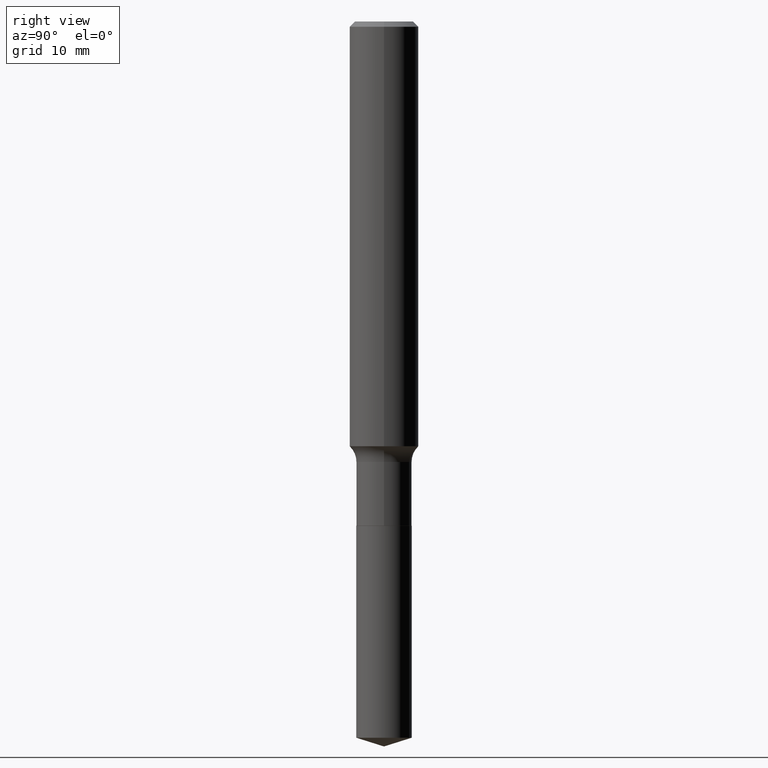
[diagram: clean part render]
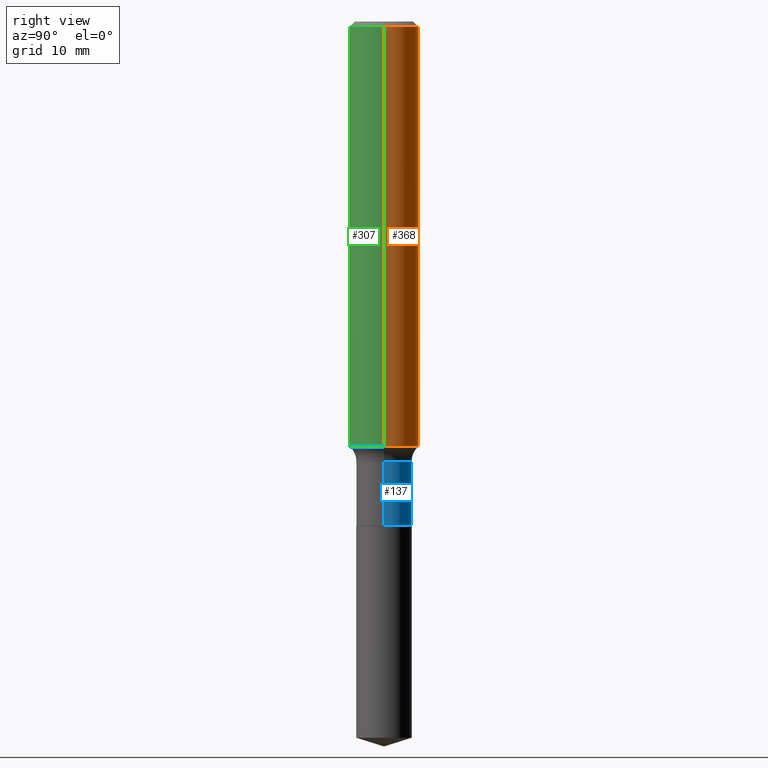
[diagram: same view with three faces highlighted in distinct colors, each labeled with its STEP entity id]
A machine part, right view with three faces highlighted in distinct colors.
Their STEP definitions:

[orange] entity #368 — the highlighted cylindrical surface (edge-blend (fillet) strip) has radius 3.175 mm, axis along (-0, 0, 1).
#13 = VERTEX_POINT ( 'NONE', #58 ) ;
#15 = DIRECTION ( 'NONE',  ( 1.000000000000000000, -6.982962677686266711E-15, 4.876176775795935232E-29 ) ) ;
#31 = CARTESIAN_POINT ( 'NONE',  ( -0.1250000000000001110, 8.881784197001260212E-16, -6.148668862818637832E-30 ) ) ;
#39 = EDGE_CURVE ( 'NONE', #227, #86, #426, .T. ) ;
#47 = CYLINDRICAL_SURFACE ( 'NONE', #468, 0.1250000000000001110 ) ;
#52 = ORIENTED_EDGE ( 'NONE', *, *, #198, .F. ) ;
#54 = ORIENTED_EDGE ( 'NONE', *, *, #159, .F. ) ;
#58 = CARTESIAN_POINT ( 'NONE',  ( 0.1250000000000001943, -6.242906681469453132E-15, -1.538039538409206042 ) ) ;
#60 = CARTESIAN_POINT ( 'NONE',  ( 4.585254011597162998E-31, -6.546527510330944066E-17, -0.01875000000000013115 ) ) ;
#71 = FACE_OUTER_BOUND ( 'NONE', #316, .T. ) ;
#86 = VERTEX_POINT ( 'NONE', #293 ) ;
#99 = EDGE_CURVE ( 'NONE', #13, #227, #300, .T. ) ;
#101 = DIRECTION ( 'NONE',  ( 1.000000000000000000, -6.982962677686266711E-15, 0.000000000000000000 ) ) ;
#132 = DIRECTION ( 'NONE',  ( -2.445468806185136597E-29, 3.491481338843145583E-15, 1.000000000000000000 ) ) ;
#145 = DIRECTION ( 'NONE',  ( -2.445468806185136877E-29, 3.491481338843145188E-15, 1.000000000000000000 ) ) ;
#153 = CARTESIAN_POINT ( 'NONE',  ( -0.1250000000000001943, -4.481857927058541405E-15, -1.538039538409206042 ) ) ;
#159 = EDGE_CURVE ( 'NONE', #288, #86, #217, .T. ) ;
#161 = CARTESIAN_POINT ( 'NONE',  ( 0.000000000000000000, 0.000000000000000000, 0.000000000000000000 ) ) ;
#179 = CARTESIAN_POINT ( 'NONE',  ( 3.761227713859099469E-29, -5.370036346758668215E-15, -1.538039538409206042 ) ) ;
#198 = EDGE_CURVE ( 'NONE', #13, #288, #409, .T. ) ;
#200 = ORIENTED_EDGE ( 'NONE', *, *, #99, .T. ) ;
#217 = CIRCLE ( 'NONE', #301, 0.1250000000000000000 ) ;
#218 = DIRECTION ( 'NONE',  ( -2.445468806185136877E-29, 3.491481338843145188E-15, 1.000000000000000000 ) ) ;
#227 = VERTEX_POINT ( 'NONE', #153 ) ;
#231 = CARTESIAN_POINT ( 'NONE',  ( 0.1250000000000000000, -9.383356098140928781E-16, -0.01875000000000013115 ) ) ;
#257 = AXIS2_PLACEMENT_3D ( 'NONE', #179, #410, #264 ) ;
#264 = DIRECTION ( 'NONE',  ( 1.000000000000000000, -6.982962677686267499E-15, 0.000000000000000000 ) ) ;
#288 = VERTEX_POINT ( 'NONE', #231 ) ;
#293 = CARTESIAN_POINT ( 'NONE',  ( -0.1250000000000000000, -1.829572391230861870E-15, -0.01875000000000013115 ) ) ;
#297 = CARTESIAN_POINT ( 'NONE',  ( 0.1250000000000001110, -8.728703347107841277E-16, 6.095220969744924646E-30 ) ) ;
#300 = CIRCLE ( 'NONE', #257, 0.1250000000000001943 ) ;
#301 = AXIS2_PLACEMENT_3D ( 'NONE', #60, #132, #101 ) ;
#316 = EDGE_LOOP ( 'NONE', ( #200, #459, #54, #52 ) ) ;
#366 = VECTOR ( 'NONE', #218, 39.37007874015748143 ) ;
#368 = ADVANCED_FACE ( 'NONE', ( #71 ), #47, .T. ) ;
#409 = LINE ( 'NONE', #297, #366 ) ;
#410 = DIRECTION ( 'NONE',  ( -2.445468806185136597E-29, 3.491481338843145583E-15, 1.000000000000000000 ) ) ;
#412 = VECTOR ( 'NONE', #145, 39.37007874015748143 ) ;
#426 = LINE ( 'NONE', #31, #412 ) ;
#459 = ORIENTED_EDGE ( 'NONE', *, *, #39, .T. ) ;
#468 = AXIS2_PLACEMENT_3D ( 'NONE', #161, #469, #15 ) ;
#469 = DIRECTION ( 'NONE',  ( -2.445468806185136597E-29, 3.491481338843145583E-15, 1.000000000000000000 ) ) ;

[blue] entity #137 — the highlighted cylindrical surface (edge-blend (fillet) strip) has radius 2.5527 mm, axis along (-0, 0, 1).
#25 = DIRECTION ( 'NONE',  ( -2.445468806185136877E-29, 3.491481338843145188E-15, 1.000000000000000000 ) ) ;
#33 = CARTESIAN_POINT ( 'NONE',  ( 0.1004999999999999782, -6.270002188294518342E-15, -1.594800000000000217 ) ) ;
#41 = VERTEX_POINT ( 'NONE', #492 ) ;
#46 = ORIENTED_EDGE ( 'NONE', *, *, #176, .F. ) ;
#76 = AXIS2_PLACEMENT_3D ( 'NONE', #480, #135, #220 ) ;
#94 = LINE ( 'NONE', #142, #389 ) ;
#102 = EDGE_CURVE ( 'NONE', #434, #41, #232, .T. ) ;
#106 = LINE ( 'NONE', #270, #405 ) ;
#114 = VERTEX_POINT ( 'NONE', #33 ) ;
#128 = CARTESIAN_POINT ( 'NONE',  ( 0.1005000000000000338, -7.075486933165632432E-15, -1.825500000000000345 ) ) ;
#129 = ORIENTED_EDGE ( 'NONE', *, *, #443, .F. ) ;
#135 = DIRECTION ( 'NONE',  ( -2.445468806185136597E-29, 3.491481338843145583E-15, 1.000000000000000000 ) ) ;
#137 = ADVANCED_FACE ( 'NONE', ( #363 ), #174, .T. ) ;
#142 = CARTESIAN_POINT ( 'NONE',  ( 0.1004999999999999921, -7.017877491074697768E-16, 4.900557659674914995E-30 ) ) ;
#157 = DIRECTION ( 'NONE',  ( 1.000000000000000000, -6.982962677686261977E-15, 0.000000000000000000 ) ) ;
#174 = CYLINDRICAL_SURFACE ( 'NONE', #281, 0.1004999999999999921 ) ;
#176 = EDGE_CURVE ( 'NONE', #434, #114, #94, .T. ) ;
#208 = CARTESIAN_POINT ( 'NONE',  ( 3.900033652104055886E-29, -5.568214439187049453E-15, -1.594800000000000217 ) ) ;
#209 = VERTEX_POINT ( 'NONE', #346 ) ;
#215 = AXIS2_PLACEMENT_3D ( 'NONE', #208, #464, #157 ) ;
#220 = DIRECTION ( 'NONE',  ( 1.000000000000000000, -6.982962677686268288E-15, 0.000000000000000000 ) ) ;
#232 = CIRCLE ( 'NONE', #76, 0.1005000000000000338 ) ;
#247 = CIRCLE ( 'NONE', #215, 0.1004999999999999782 ) ;
#270 = CARTESIAN_POINT ( 'NONE',  ( -0.1004999999999999921, 7.140954494389006308E-16, -4.943529765706180112E-30 ) ) ;
#281 = AXIS2_PLACEMENT_3D ( 'NONE', #330, #328, #442 ) ;
#328 = DIRECTION ( 'NONE',  ( -2.445468806185136597E-29, 3.491481338843145583E-15, 1.000000000000000000 ) ) ;
#330 = CARTESIAN_POINT ( 'NONE',  ( 0.000000000000000000, 0.000000000000000000, 0.000000000000000000 ) ) ;
#346 = CARTESIAN_POINT ( 'NONE',  ( -0.1004999999999999782, -5.256861362183704782E-15, -1.594800000000000217 ) ) ;
#359 = EDGE_CURVE ( 'NONE', #41, #209, #106, .T. ) ;
#363 = FACE_OUTER_BOUND ( 'NONE', #393, .T. ) ;
#389 = VECTOR ( 'NONE', #25, 39.37007874015748143 ) ;
#393 = EDGE_LOOP ( 'NONE', ( #465, #454, #129, #46 ) ) ;
#405 = VECTOR ( 'NONE', #414, 39.37007874015748143 ) ;
#414 = DIRECTION ( 'NONE',  ( -2.445468806185136877E-29, 3.491481338843145188E-15, 1.000000000000000000 ) ) ;
#434 = VERTEX_POINT ( 'NONE', #128 ) ;
#442 = DIRECTION ( 'NONE',  ( 1.000000000000000000, -6.982962677686266711E-15, 4.876176775795935793E-29 ) ) ;
#443 = EDGE_CURVE ( 'NONE', #114, #209, #247, .T. ) ;
#454 = ORIENTED_EDGE ( 'NONE', *, *, #359, .T. ) ;
#464 = DIRECTION ( 'NONE',  ( -2.445468806185136597E-29, 3.491481338843145583E-15, 1.000000000000000000 ) ) ;
#465 = ORIENTED_EDGE ( 'NONE', *, *, #102, .T. ) ;
#480 = CARTESIAN_POINT ( 'NONE',  ( 4.464203305690967315E-29, -6.373699184058162754E-15, -1.825500000000000345 ) ) ;
#492 = CARTESIAN_POINT ( 'NONE',  ( -0.1005000000000000476, -5.256861362183703993E-15, -1.825500000000000345 ) ) ;

[green] entity #307 — the highlighted cylindrical surface (edge-blend (fillet) strip) has radius 3.175 mm, axis along (-0, 0, 1).
#12 = DIRECTION ( 'NONE',  ( 1.000000000000000000, -6.982962677686266711E-15, 4.876176775795935232E-29 ) ) ;
#13 = VERTEX_POINT ( 'NONE', #58 ) ;
#26 = EDGE_CURVE ( 'NONE', #86, #288, #122, .T. ) ;
#31 = CARTESIAN_POINT ( 'NONE',  ( -0.1250000000000001110, 8.881784197001260212E-16, -6.148668862818637832E-30 ) ) ;
#39 = EDGE_CURVE ( 'NONE', #227, #86, #426, .T. ) ;
#48 = AXIS2_PLACEMENT_3D ( 'NONE', #211, #158, #463 ) ;
#58 = CARTESIAN_POINT ( 'NONE',  ( 0.1250000000000001943, -6.242906681469453132E-15, -1.538039538409206042 ) ) ;
#86 = VERTEX_POINT ( 'NONE', #293 ) ;
#104 = DIRECTION ( 'NONE',  ( -2.445468806185136597E-29, 3.491481338843145583E-15, 1.000000000000000000 ) ) ;
#108 = FACE_OUTER_BOUND ( 'NONE', #126, .T. ) ;
#121 = CIRCLE ( 'NONE', #402, 0.1250000000000001943 ) ;
#122 = CIRCLE ( 'NONE', #48, 0.1250000000000000000 ) ;
#125 = ORIENTED_EDGE ( 'NONE', *, *, #351, .T. ) ;
#126 = EDGE_LOOP ( 'NONE', ( #379, #125, #154, #290 ) ) ;
#145 = DIRECTION ( 'NONE',  ( -2.445468806185136877E-29, 3.491481338843145188E-15, 1.000000000000000000 ) ) ;
#153 = CARTESIAN_POINT ( 'NONE',  ( -0.1250000000000001943, -4.481857927058541405E-15, -1.538039538409206042 ) ) ;
#154 = ORIENTED_EDGE ( 'NONE', *, *, #198, .T. ) ;
#158 = DIRECTION ( 'NONE',  ( -2.445468806185136597E-29, 3.491481338843145583E-15, 1.000000000000000000 ) ) ;
#198 = EDGE_CURVE ( 'NONE', #13, #288, #409, .T. ) ;
#211 = CARTESIAN_POINT ( 'NONE',  ( 4.585254011597162998E-31, -6.546527510330944066E-17, -0.01875000000000013115 ) ) ;
#218 = DIRECTION ( 'NONE',  ( -2.445468806185136877E-29, 3.491481338843145188E-15, 1.000000000000000000 ) ) ;
#227 = VERTEX_POINT ( 'NONE', #153 ) ;
#228 = CYLINDRICAL_SURFACE ( 'NONE', #230, 0.1250000000000001110 ) ;
#230 = AXIS2_PLACEMENT_3D ( 'NONE', #273, #378, #12 ) ;
#231 = CARTESIAN_POINT ( 'NONE',  ( 0.1250000000000000000, -9.383356098140928781E-16, -0.01875000000000013115 ) ) ;
#267 = DIRECTION ( 'NONE',  ( 1.000000000000000000, -6.982962677686267499E-15, 0.000000000000000000 ) ) ;
#273 = CARTESIAN_POINT ( 'NONE',  ( 0.000000000000000000, 0.000000000000000000, 0.000000000000000000 ) ) ;
#288 = VERTEX_POINT ( 'NONE', #231 ) ;
#290 = ORIENTED_EDGE ( 'NONE', *, *, #26, .F. ) ;
#293 = CARTESIAN_POINT ( 'NONE',  ( -0.1250000000000000000, -1.829572391230861870E-15, -0.01875000000000013115 ) ) ;
#297 = CARTESIAN_POINT ( 'NONE',  ( 0.1250000000000001110, -8.728703347107841277E-16, 6.095220969744924646E-30 ) ) ;
#307 = ADVANCED_FACE ( 'NONE', ( #108 ), #228, .T. ) ;
#351 = EDGE_CURVE ( 'NONE', #227, #13, #121, .T. ) ;
#366 = VECTOR ( 'NONE', #218, 39.37007874015748143 ) ;
#378 = DIRECTION ( 'NONE',  ( -2.445468806185136597E-29, 3.491481338843145583E-15, 1.000000000000000000 ) ) ;
#379 = ORIENTED_EDGE ( 'NONE', *, *, #39, .F. ) ;
#402 = AXIS2_PLACEMENT_3D ( 'NONE', #450, #104, #267 ) ;
#409 = LINE ( 'NONE', #297, #366 ) ;
#412 = VECTOR ( 'NONE', #145, 39.37007874015748143 ) ;
#426 = LINE ( 'NONE', #31, #412 ) ;
#450 = CARTESIAN_POINT ( 'NONE',  ( 3.761227713859099469E-29, -5.370036346758668215E-15, -1.538039538409206042 ) ) ;
#463 = DIRECTION ( 'NONE',  ( 1.000000000000000000, -6.982962677686266711E-15, 0.000000000000000000 ) ) ;